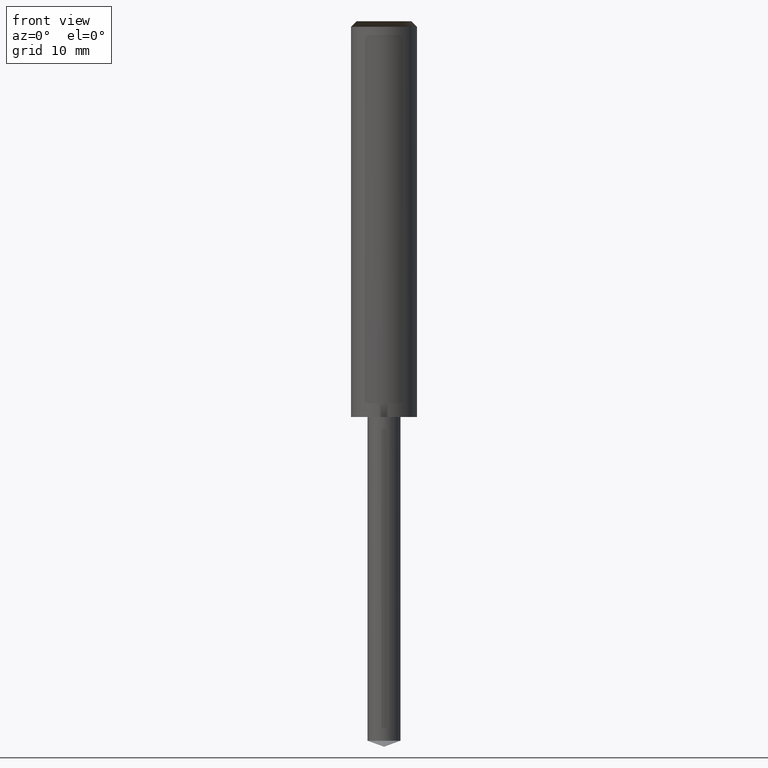
[diagram: clean part render]
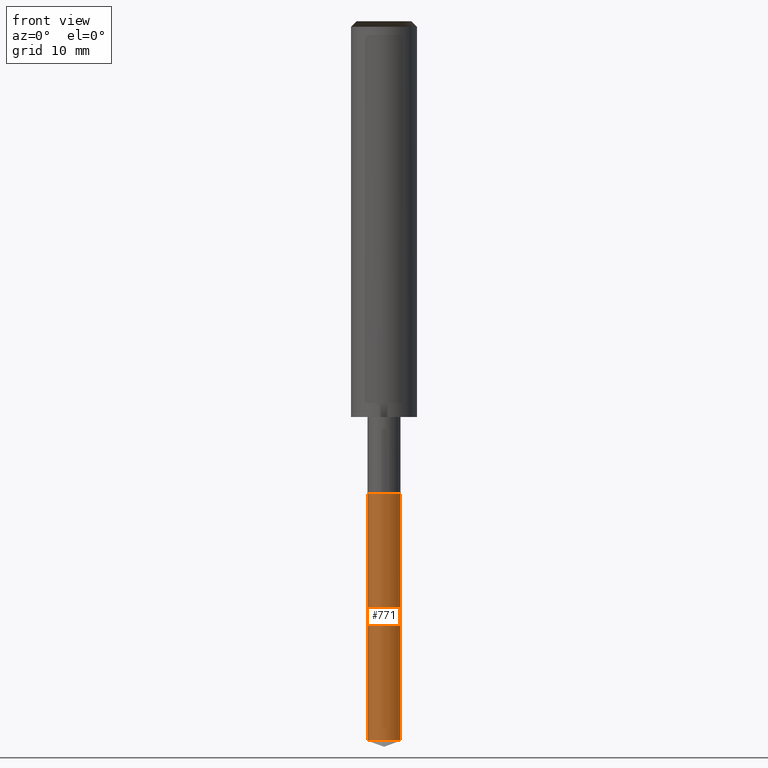
[diagram: same view with one face highlighted and labeled with its STEP entity id]
A machine part, front view. The second image highlights one B-rep face of the part: STEP entity #771.
In plain terms, the highlighted face is a freeform B-spline surface patch.
Its self-contained STEP definition (entity closure, byte-faithful):
#621=CARTESIAN_POINT('',(1.5,0.0,-29.454044648601));
#625=CARTESIAN_POINT('',(-1.5,0.0,-29.454044648601));
#626=CARTESIAN_POINT('',(1.5,0.0,-7.0));
#630=CARTESIAN_POINT('',(-1.5,0.0,-7.0));
#632=CARTESIAN_POINT('',(-1.5,-1.5,-29.454044648601));
#633=CARTESIAN_POINT('',(0.0,-1.5,-29.454044648601));
#634=CARTESIAN_POINT('',(1.5,-1.5,-29.454044648601));
#635=CARTESIAN_POINT('',(-1.5,-1.5,-7.0));
#636=CARTESIAN_POINT('',(0.0,-1.5,-7.0));
#637=CARTESIAN_POINT('',(1.5,-1.5,-7.0));
#752=(
BOUNDED_SURFACE()
B_SPLINE_SURFACE(1,2,(
(#625,#632,#633,#634,#621),
(#630,#635,#636,#637,#626)
), .UNSPECIFIED.,.F.,.F.,.F.)
B_SPLINE_SURFACE_WITH_KNOTS((2,2),(3,2,3),(
0.0,1.0),(
0.0,0.5,1.0), .UNSPECIFIED.)
GEOMETRIC_REPRESENTATION_ITEM()
RATIONAL_B_SPLINE_SURFACE(((1.0,0.707106781187,1.0,0.707106781187,1.0),
(1.0,0.707106781187,1.0,0.707106781187,1.0)
))
REPRESENTATION_ITEM('')
SURFACE()
);
#753=(
BOUNDED_CURVE()
B_SPLINE_CURVE(2,(#621,#634,#633,#632,#625),.UNSPECIFIED.,.F.,.F.)
B_SPLINE_CURVE_WITH_KNOTS((3,2,3),
(0.0,0.5,1.0),.UNSPECIFIED.)
CURVE()
GEOMETRIC_REPRESENTATION_ITEM()
RATIONAL_B_SPLINE_CURVE((1.0,0.707106781187,1.0,0.707106781187,1.0))
REPRESENTATION_ITEM('')
);
#754=(
BOUNDED_CURVE()
B_SPLINE_CURVE(1,(#625,#630),.UNSPECIFIED.,.F.,.F.)
B_SPLINE_CURVE_WITH_KNOTS((2,2),
(0.0,1.0),.UNSPECIFIED.)
CURVE()
GEOMETRIC_REPRESENTATION_ITEM()
RATIONAL_B_SPLINE_CURVE((1.0,1.0))
REPRESENTATION_ITEM('')
);
#755=(
BOUNDED_CURVE()
B_SPLINE_CURVE(2,(#630,#635,#636,#637,#626),.UNSPECIFIED.,.F.,.F.)
B_SPLINE_CURVE_WITH_KNOTS((3,2,3),
(0.0,0.5,1.0),.UNSPECIFIED.)
CURVE()
GEOMETRIC_REPRESENTATION_ITEM()
RATIONAL_B_SPLINE_CURVE((1.0,0.707106781187,1.0,0.707106781187,1.0))
REPRESENTATION_ITEM('')
);
#756=(
BOUNDED_CURVE()
B_SPLINE_CURVE(1,(#626,#621),.UNSPECIFIED.,.F.,.F.)
B_SPLINE_CURVE_WITH_KNOTS((2,2),
(0.0,1.0),.UNSPECIFIED.)
CURVE()
GEOMETRIC_REPRESENTATION_ITEM()
RATIONAL_B_SPLINE_CURVE((1.0,1.0))
REPRESENTATION_ITEM('')
);
#757=VERTEX_POINT('',#621);
#758=VERTEX_POINT('',#625);
#759=VERTEX_POINT('',#626);
#760=VERTEX_POINT('',#630);
#761=EDGE_CURVE('',#757,#758,#753,.T.);
#762=EDGE_CURVE('',#758,#760,#754,.T.);
#763=EDGE_CURVE('',#760,#759,#755,.T.);
#764=EDGE_CURVE('',#759,#757,#756,.T.);
#765=ORIENTED_EDGE('',*,*,#761,.T.);
#766=ORIENTED_EDGE('',*,*,#762,.T.);
#767=ORIENTED_EDGE('',*,*,#763,.T.);
#768=ORIENTED_EDGE('',*,*,#764,.T.);
#769=EDGE_LOOP('',(#765,#766,#767,#768));
#770=FACE_OUTER_BOUND('',#769,.T.);
#771=ADVANCED_FACE('',(#770),#752,.T.);